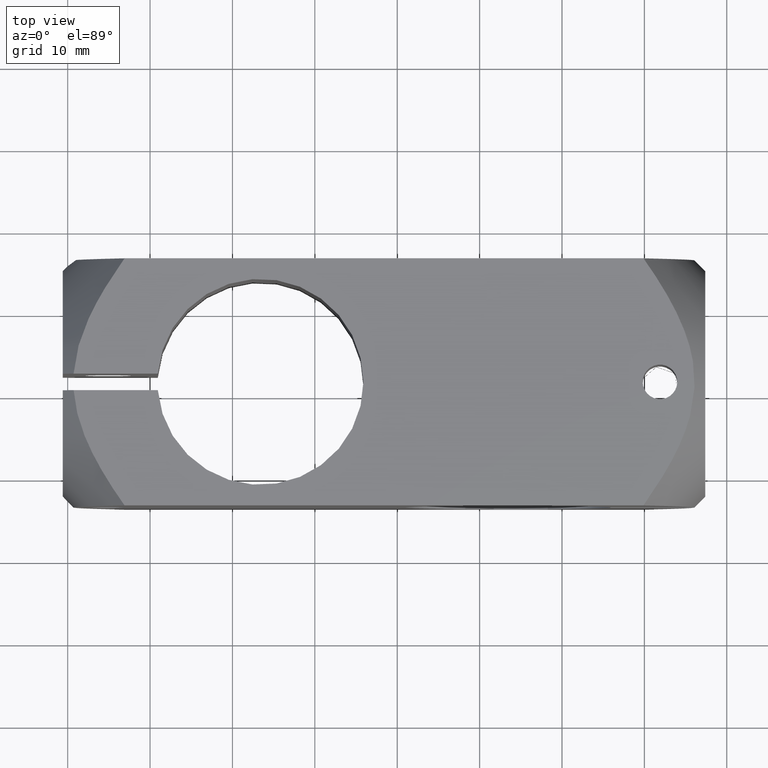
[diagram: clean part render]
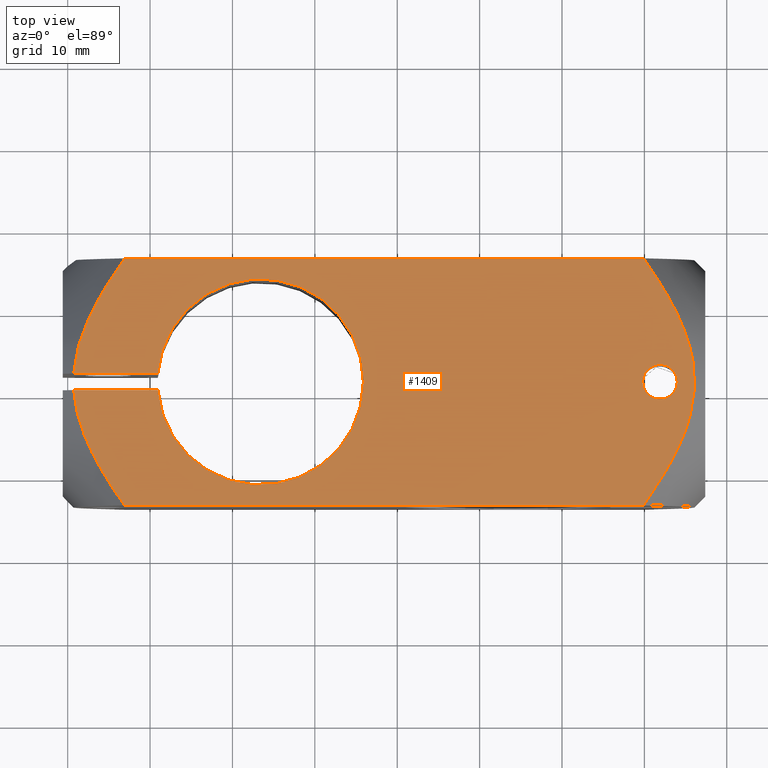
[diagram: same view with one face highlighted and labeled with its STEP entity id]
A machine part, top view. The second image highlights one B-rep face of the part: STEP entity #1409.
In plain terms, the highlighted planar face has unit normal (-0, 0, 1).
Its self-contained STEP definition (entity closure, byte-faithful):
#2 = CARTESIAN_POINT ( 'NONE',  ( -16.84207946947950774, 0.4901899301338260018, 93.16369555892570986 ) ) ;
#42 = DIRECTION ( 'NONE',  ( 1.000000000000000000, 0.000000000000000000, 0.000000000000000000 ) ) ;
#49 = CARTESIAN_POINT ( 'NONE',  ( 55.64711209352408616, -4.724379538295729652, 93.16369555892568144 ) ) ;
#69 = CARTESIAN_POINT ( 'NONE',  ( 53.55338631235187563, 0.6978522419462565018, 93.16369555892572407 ) ) ;
#73 = FACE_OUTER_BOUND ( 'NONE', #1784, .T. ) ;
#79 = CARTESIAN_POINT ( 'NONE',  ( 55.86259425320707095, -5.738660411678615958, 93.16369555892570986 ) ) ;
#106 = VERTEX_POINT ( 'NONE', #1228 ) ;
#117 = LINE ( 'NONE', #291, #1576 ) ;
#132 = ORIENTED_EDGE ( 'NONE', *, *, #750, .F. ) ;
#156 = CARTESIAN_POINT ( 'NONE',  ( -19.09456608968422131, -11.10286215911460417, 93.16369555892569565 ) ) ;
#192 = CARTESIAN_POINT ( 'NONE',  ( -19.28395444628326771, -7.489728769479425452, 93.16369555892570986 ) ) ;
#194 = EDGE_CURVE ( 'NONE', #106, #678, #117, .T. ) ;
#202 = ORIENTED_EDGE ( 'NONE', *, *, #194, .F. ) ;
#221 = ORIENTED_EDGE ( 'NONE', *, *, #952, .F. ) ;
#230 = CARTESIAN_POINT ( 'NONE',  ( 56.10888794529617485, -7.798457903708203354, 93.16369555892572407 ) ) ;
#231 = DIRECTION ( 'NONE',  ( 1.000000000000000000, 0.000000000000000000, 0.000000000000000000 ) ) ;
#245 = PLANE ( 'NONE',  #451 ) ;
#251 = CARTESIAN_POINT ( 'NONE',  ( 55.73804321729893729, -11.90804792142824375, 93.16369555892573828 ) ) ;
#291 = CARTESIAN_POINT ( 'NONE',  ( -44.57811922938638105, -7.489728769479425452, 93.16369555892570986 ) ) ;
#294 = EDGE_CURVE ( 'NONE', #643, #1188, #936, .T. ) ;
#297 = CARTESIAN_POINT ( 'NONE',  ( -44.57811922938638105, -9.489658271507050102, 93.16369555892570986 ) ) ;
#309 = LINE ( 'NONE', #1353, #938 ) ;
#310 = CARTESIAN_POINT ( 'NONE',  ( -16.84512115654323594, -17.46362567059150095, 93.16369555892572407 ) ) ;
#312 = B_SPLINE_CURVE_WITH_KNOTS ( 'NONE', 3,
 ( #2129, #402, #1798, #591, #69, #777, #913, #49, #1787, #79, #1430, #433, #230, #1595, #1460, #446, #251, #769, #2145, #2118, #1468, #2154, #1275, #1770, #576, #1296 ),
 .UNSPECIFIED., .F., .F.,
 ( 4, 2, 2, 2, 2, 2, 2, 2, 2, 2, 2, 2, 4 ),
 ( 0.04116296883264595335, 0.04527458552200146896, 0.04938620221135699151, 0.05349781890071250712, 0.05452572307305138949, 0.05555362724539027186, 0.05760943559006802966, 0.05966524393474580135, 0.06172105227942356609, 0.06583266896877909558, 0.06788847731345687420, 0.06994428565813465282, 0.07405590234749021006 ),
 .UNSPECIFIED. ) ;
#318 = ORIENTED_EDGE ( 'NONE', *, *, #1816, .F. ) ;
#324 = LINE ( 'NONE', #297, #1596 ) ;
#350 = CARTESIAN_POINT ( 'NONE',  ( -13.84465349460914041, 5.462927964774980438, 93.16369555892570986 ) ) ;
#363 = CARTESIAN_POINT ( 'NONE',  ( -16.53873540897851058, 1.065166058701118690, 93.16369555892572407 ) ) ;
#395 = DIRECTION ( 'NONE',  ( -0.000000000000000000, 0.000000000000000000, 1.000000000000000000 ) ) ;
#402 = CARTESIAN_POINT ( 'NONE',  ( 50.68577953872114961, 5.393325842199124587, 93.16369555892573828 ) ) ;
#404 = CARTESIAN_POINT ( 'NONE',  ( -20.60404504437315865, -23.48969352049323689, 93.16369555892570986 ) ) ;
#415 = ORIENTED_EDGE ( 'NONE', *, *, #2158, .F. ) ;
#433 = CARTESIAN_POINT ( 'NONE',  ( 56.06143273821719220, -7.112561011870878858, 93.16369555892570986 ) ) ;
#445 = CARTESIAN_POINT ( 'NONE',  ( 49.79595495562683283, -8.489693520493242218, 93.16369555892570986 ) ) ;
#446 = CARTESIAN_POINT ( 'NONE',  ( 55.87734284045892252, -11.22242657974016566, 93.16369555892570986 ) ) ;
#451 = AXIS2_PLACEMENT_3D ( 'NONE', #2005, #782, #1118 ) ;
#458 = DIRECTION ( 'NONE',  ( 1.000000000000000000, 0.000000000000000000, 0.000000000000000000 ) ) ;
#480 = VERTEX_POINT ( 'NONE', #1347 ) ;
#483 = CARTESIAN_POINT ( 'NONE',  ( -18.91037143832029699, -12.06267895146951474, 93.16369555892573828 ) ) ;
#576 = CARTESIAN_POINT ( 'NONE',  ( 50.68482422112928276, -22.37406390628034458, 93.16369555892572407 ) ) ;
#591 = CARTESIAN_POINT ( 'NONE',  ( 52.87989080694733701, 1.910678971738385634, 93.16369555892568144 ) ) ;
#605 = ORIENTED_EDGE ( 'NONE', *, *, #1824, .T. ) ;
#628 = CARTESIAN_POINT ( 'NONE',  ( 51.89595495562682004, -8.489693520493242218, 93.16369555892570986 ) ) ;
#643 = VERTEX_POINT ( 'NONE', #1715 ) ;
#672 = VECTOR ( 'NONE', #1773, 1000.000000000000000 ) ;
#678 = VERTEX_POINT ( 'NONE', #1622 ) ;
#694 = CARTESIAN_POINT ( 'NONE',  ( -18.91135449934182589, -4.920603890110928802, 93.16369555892570986 ) ) ;
#717 = CARTESIAN_POINT ( 'NONE',  ( -13.10404504437319417, 6.510306479506788868, 93.16369555892569565 ) ) ;
#729 = CARTESIAN_POINT ( 'NONE',  ( -14.56087632634420537, 4.396625593688086475, 93.16369555892569565 ) ) ;
#750 = EDGE_CURVE ( 'NONE', #1188, #643, #2013, .T. ) ;
#756 = B_SPLINE_CURVE_WITH_KNOTS ( 'NONE', 3,
 ( #2037, #1704, #1319, #2218, #2028, #830, #310, #1355, #1848, #1507, #483, #156, #1482, #1827, #1172, #983 ),
 .UNSPECIFIED., .F., .F.,
 ( 4, 2, 2, 2, 2, 2, 2, 4 ),
 ( 0.04116296883264590478, 0.04502619078356938365, 0.04695780175903112308, 0.04888941273449286251, 0.05275263468541632750, 0.05468424566087806693, 0.05565005114860892971, 0.05661585663633979248 ),
 .UNSPECIFIED. ) ;
#767 = ORIENTED_EDGE ( 'NONE', *, *, #1992, .F. ) ;
#769 = CARTESIAN_POINT ( 'NONE',  ( 55.21235996104594079, -13.90855509937384937, 93.16369555892569565 ) ) ;
#777 = CARTESIAN_POINT ( 'NONE',  ( 54.71664569439417392, -1.787429994836908120, 93.16369555892572407 ) ) ;
#780 = DIRECTION ( 'NONE',  ( 0.000000000000000000, 0.000000000000000000, 1.000000000000000000 ) ) ;
#782 = DIRECTION ( 'NONE',  ( -0.000000000000000000, 0.000000000000000000, 1.000000000000000000 ) ) ;
#788 = DIRECTION ( 'NONE',  ( -0.000000000000000000, 0.000000000000000000, 1.000000000000000000 ) ) ;
#790 = AXIS2_PLACEMENT_3D ( 'NONE', #628, #788, #231 ) ;
#796 = CARTESIAN_POINT ( 'NONE',  ( 3.395954955626820482, -8.489693520493240442, 93.16369555892570986 ) ) ;
#830 = CARTESIAN_POINT ( 'NONE',  ( -16.54239402288973437, -18.03775945732613195, 93.16369555892570986 ) ) ;
#869 = CARTESIAN_POINT ( 'NONE',  ( -19.24119032010972674, -6.846820424751533629, 93.16369555892570986 ) ) ;
#880 = ORIENTED_EDGE ( 'NONE', *, *, #294, .F. ) ;
#887 = EDGE_CURVE ( 'NONE', #1370, #1642, #309, .T. ) ;
#889 = CARTESIAN_POINT ( 'NONE',  ( 49.89595495562682714, 6.510306479506772881, 93.16369555892570986 ) ) ;
#913 = CARTESIAN_POINT ( 'NONE',  ( 55.20937157497905190, -3.063217724965647371, 93.16369555892572407 ) ) ;
#919 = EDGE_CURVE ( 'NONE', #480, #1808, #1145, .T. ) ;
#936 = CIRCLE ( 'NONE', #1617, 2.099999999999990763 ) ;
#938 = VECTOR ( 'NONE', #2003, 1000.000000000000000 ) ;
#942 = ORIENTED_EDGE ( 'NONE', *, *, #919, .F. ) ;
#952 = EDGE_CURVE ( 'NONE', #678, #1642, #1705, .T. ) ;
#983 = CARTESIAN_POINT ( 'NONE',  ( -19.28395444628327482, -9.489658271507050102, 93.16369555892570986 ) ) ;
#1000 = VERTEX_POINT ( 'NONE', #1058 ) ;
#1058 = CARTESIAN_POINT ( 'NONE',  ( 49.89595495562682714, -23.48969352049323689, 93.16369555892570986 ) ) ;
#1069 = ORIENTED_EDGE ( 'NONE', *, *, #1970, .F. ) ;
#1072 = CARTESIAN_POINT ( 'NONE',  ( -18.18662102592009333, -2.441772961975624323, 93.16369555892569565 ) ) ;
#1096 = CARTESIAN_POINT ( 'NONE',  ( 15.89595495562682181, -8.489693520493240442, 93.16369555892570986 ) ) ;
#1105 = DIRECTION ( 'NONE',  ( 1.000000000000000000, 0.000000000000000000, 0.000000000000000000 ) ) ;
#1118 = DIRECTION ( 'NONE',  ( 1.000000000000000000, 0.000000000000000000, 0.000000000000000000 ) ) ;
#1145 = CIRCLE ( 'NONE', #1619, 12.50000000000000000 ) ;
#1172 = CARTESIAN_POINT ( 'NONE',  ( -19.26252145620419398, -9.811878071308226978, 93.16369555892573828 ) ) ;
#1188 = VERTEX_POINT ( 'NONE', #445 ) ;
#1192 = CARTESIAN_POINT ( 'NONE',  ( -15.57712750612740571, 2.752098108256788578, 93.16369555892570986 ) ) ;
#1228 = CARTESIAN_POINT ( 'NONE',  ( -9.063983667686292378, -7.489728769479425452, 93.16369555892570986 ) ) ;
#1230 = CARTESIAN_POINT ( 'NONE',  ( -19.28395444628327482, -9.489658271507050102, 93.16369555892570986 ) ) ;
#1275 = CARTESIAN_POINT ( 'NONE',  ( 52.52026432237769171, -19.47888155802303700, 93.16369555892570986 ) ) ;
#1296 = CARTESIAN_POINT ( 'NONE',  ( 49.89595495562682714, -23.48969352049323689, 93.16369555892570986 ) ) ;
#1313 = EDGE_LOOP ( 'NONE', ( #132, #880 ) ) ;
#1319 = CARTESIAN_POINT ( 'NONE',  ( -14.56348702612060464, -21.37208450014085770, 93.16369555892570986 ) ) ;
#1347 = CARTESIAN_POINT ( 'NONE',  ( -9.063983667686292378, -9.489658271507050102, 93.16369555892570986 ) ) ;
#1353 = CARTESIAN_POINT ( 'NONE',  ( -20.60404504437317286, 6.510306479506761335, 93.16369555892570986 ) ) ;
#1355 = CARTESIAN_POINT ( 'NONE',  ( -17.69489535768491351, -15.72347008851799899, 93.16369555892569565 ) ) ;
#1370 = VERTEX_POINT ( 'NONE', #889 ) ;
#1371 = ORIENTED_EDGE ( 'NONE', *, *, #887, .T. ) ;
#1409 = ADVANCED_FACE ( 'NONE', ( #73, #1814 ), #245, .T. ) ;
#1430 = CARTESIAN_POINT ( 'NONE',  ( 55.92110278555691849, -6.082902142879754059, 93.16369555892570986 ) ) ;
#1460 = CARTESIAN_POINT ( 'NONE',  ( 56.06251388963205073, -9.853928015680851971, 93.16369555892572407 ) ) ;
#1468 = CARTESIAN_POINT ( 'NONE',  ( 53.52986330670189830, -17.67063773273314098, 93.16369555892570986 ) ) ;
#1481 = DIRECTION ( 'NONE',  ( 0.000000000000000000, 0.000000000000000000, 1.000000000000000000 ) ) ;
#1482 = CARTESIAN_POINT ( 'NONE',  ( -19.14690413195883423, -10.77914124235996951, 93.16369555892573828 ) ) ;
#1507 = CARTESIAN_POINT ( 'NONE',  ( -18.75152712022382673, -12.68911683556057923, 93.16369555892569565 ) ) ;
#1527 = CARTESIAN_POINT ( 'NONE',  ( -13.10404504437318707, -23.48969352049328307, 93.16369555892569565 ) ) ;
#1576 = VECTOR ( 'NONE', #1697, 1000.000000000000000 ) ;
#1585 = CARTESIAN_POINT ( 'NONE',  ( -15.90608147390452309, 2.196320005978661172, 93.16369555892570986 ) ) ;
#1595 = CARTESIAN_POINT ( 'NONE',  ( 56.10942652129755004, -9.169141382086218428, 93.16369555892572407 ) ) ;
#1596 = VECTOR ( 'NONE', #2179, 1000.000000000000000 ) ;
#1617 = AXIS2_PLACEMENT_3D ( 'NONE', #2098, #395, #42 ) ;
#1619 = AXIS2_PLACEMENT_3D ( 'NONE', #796, #1481, #458 ) ;
#1622 = CARTESIAN_POINT ( 'NONE',  ( -19.28395444628326771, -7.489728769479425452, 93.16369555892570986 ) ) ;
#1626 = VERTEX_POINT ( 'NONE', #1527 ) ;
#1642 = VERTEX_POINT ( 'NONE', #1877 ) ;
#1697 = DIRECTION ( 'NONE',  ( -1.000000000000000000, -0.000000000000000000, -0.000000000000000000 ) ) ;
#1704 = CARTESIAN_POINT ( 'NONE',  ( -13.84615402420300434, -22.44019293645908419, 93.16369555892570986 ) ) ;
#1705 = B_SPLINE_CURVE_WITH_KNOTS ( 'NONE', 3,
 ( #192, #869, #2093, #694, #1920, #1072, #1713, #2, #363, #1585, #1192, #729, #350, #717 ),
 .UNSPECIFIED., .F., .F.,
 ( 4, 2, 2, 2, 2, 2, 4 ),
 ( 0.05861558442698756172, 0.06054562416705039363, 0.06247566390711323248, 0.06633574338723891017, 0.06826578312730173514, 0.07019582286736457399, 0.07405590234749023781 ),
 .UNSPECIFIED. ) ;
#1713 = CARTESIAN_POINT ( 'NONE',  ( -17.69329624816261770, -1.252091212269398568, 93.16369555892572407 ) ) ;
#1715 = CARTESIAN_POINT ( 'NONE',  ( 53.99595495562681435, -8.489693520493242218, 93.16369555892570986 ) ) ;
#1770 = CARTESIAN_POINT ( 'NONE',  ( 51.44614382064460756, -21.23705505488499057, 93.16369555892572407 ) ) ;
#1773 = DIRECTION ( 'NONE',  ( 1.000000000000000000, 0.000000000000000000, 0.000000000000000000 ) ) ;
#1784 = EDGE_LOOP ( 'NONE', ( #415, #1371, #221, #202, #318, #942, #1069, #767, #605 ) ) ;
#1787 = CARTESIAN_POINT ( 'NONE',  ( 55.72564401675964518, -5.059973464791682751, 93.16369555892572407 ) ) ;
#1798 = CARTESIAN_POINT ( 'NONE',  ( 51.44765544457914785, 4.255354515466854615, 93.16369555892570986 ) ) ;
#1802 = AXIS2_PLACEMENT_3D ( 'NONE', #1949, #780, #1105 ) ;
#1808 = VERTEX_POINT ( 'NONE', #1096 ) ;
#1814 = FACE_BOUND ( 'NONE', #1313, .T. ) ;
#1816 = EDGE_CURVE ( 'NONE', #1808, #106, #2031, .T. ) ;
#1824 = EDGE_CURVE ( 'NONE', #1626, #1000, #2139, .T. ) ;
#1827 = CARTESIAN_POINT ( 'NONE',  ( -19.23075643469383067, -10.13421942971678114, 93.16369555892572407 ) ) ;
#1848 = CARTESIAN_POINT ( 'NONE',  ( -18.18715098107056960, -14.53567931633559240, 93.16369555892569565 ) ) ;
#1877 = CARTESIAN_POINT ( 'NONE',  ( -13.10404504437319417, 6.510306479506788868, 93.16369555892569565 ) ) ;
#1920 = CARTESIAN_POINT ( 'NONE',  ( -18.75218849785835928, -4.292534659796812591, 93.16369555892570986 ) ) ;
#1949 = CARTESIAN_POINT ( 'NONE',  ( 3.395954955626820482, -8.489693520493240442, 93.16369555892570986 ) ) ;
#1970 = EDGE_CURVE ( 'NONE', #2067, #480, #324, .T. ) ;
#1992 = EDGE_CURVE ( 'NONE', #1626, #2067, #756, .T. ) ;
#2003 = DIRECTION ( 'NONE',  ( -1.000000000000000000, -8.896017825522088106E-17, -0.000000000000000000 ) ) ;
#2005 = CARTESIAN_POINT ( 'NONE',  ( 18.39595495562682004, -8.489693520493238665, 93.16369555892570986 ) ) ;
#2013 = CIRCLE ( 'NONE', #790, 2.099999999999990763 ) ;
#2028 = CARTESIAN_POINT ( 'NONE',  ( -15.90972013830118570, -19.16945062508427711, 93.16369555892572407 ) ) ;
#2031 = CIRCLE ( 'NONE', #1802, 12.50000000000000000 ) ;
#2037 = CARTESIAN_POINT ( 'NONE',  ( -13.10404504437318707, -23.48969352049328307, 93.16369555892569565 ) ) ;
#2067 = VERTEX_POINT ( 'NONE', #1230 ) ;
#2093 = CARTESIAN_POINT ( 'NONE',  ( -19.15722316725751284, -6.204261629267699973, 93.16369555892572407 ) ) ;
#2098 = CARTESIAN_POINT ( 'NONE',  ( 51.89595495562682004, -8.489693520493242218, 93.16369555892570986 ) ) ;
#2118 = CARTESIAN_POINT ( 'NONE',  ( 53.84425070080842346, -17.05589892237449590, 93.16369555892572407 ) ) ;
#2129 = CARTESIAN_POINT ( 'NONE',  ( 49.89595495562682714, 6.510306479506772881, 93.16369555892570986 ) ) ;
#2139 = LINE ( 'NONE', #404, #672 ) ;
#2145 = CARTESIAN_POINT ( 'NONE',  ( 54.71852260875550655, -15.18777466871846826, 93.16369555892569565 ) ) ;
#2154 = CARTESIAN_POINT ( 'NONE',  ( 52.86684402505119351, -18.88393011554109435, 93.16369555892570986 ) ) ;
#2158 = EDGE_CURVE ( 'NONE', #1370, #1000, #312, .T. ) ;
#2179 = DIRECTION ( 'NONE',  ( 1.000000000000000000, 0.000000000000000000, 0.000000000000000000 ) ) ;
#2218 = CARTESIAN_POINT ( 'NONE',  ( -15.58060888693408330, -19.72570213937304118, 93.16369555892572407 ) ) ;